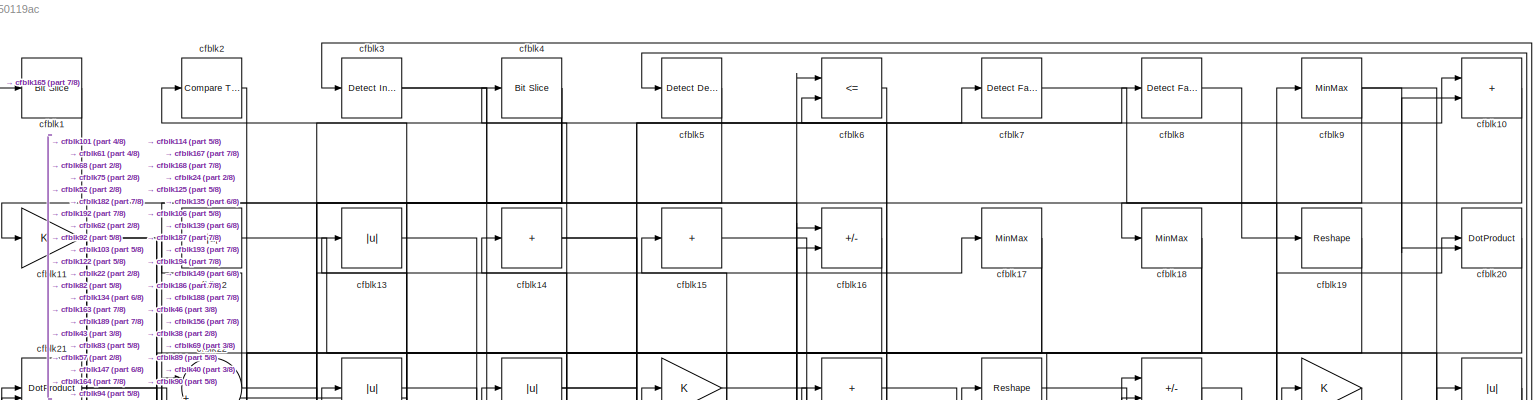
[diagram: root canvas - part 1/8, full width, top band]
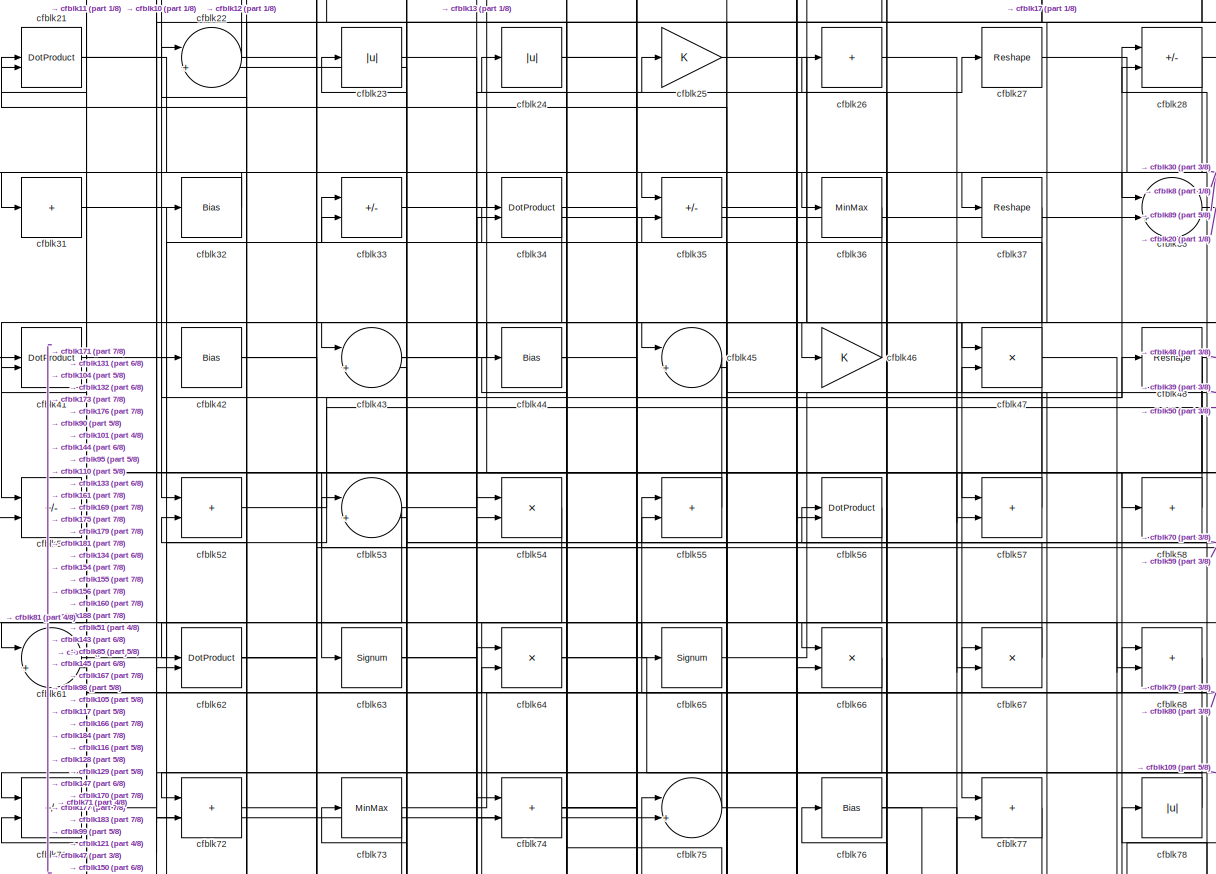
[diagram: root canvas - part 2/8, full width, top band]
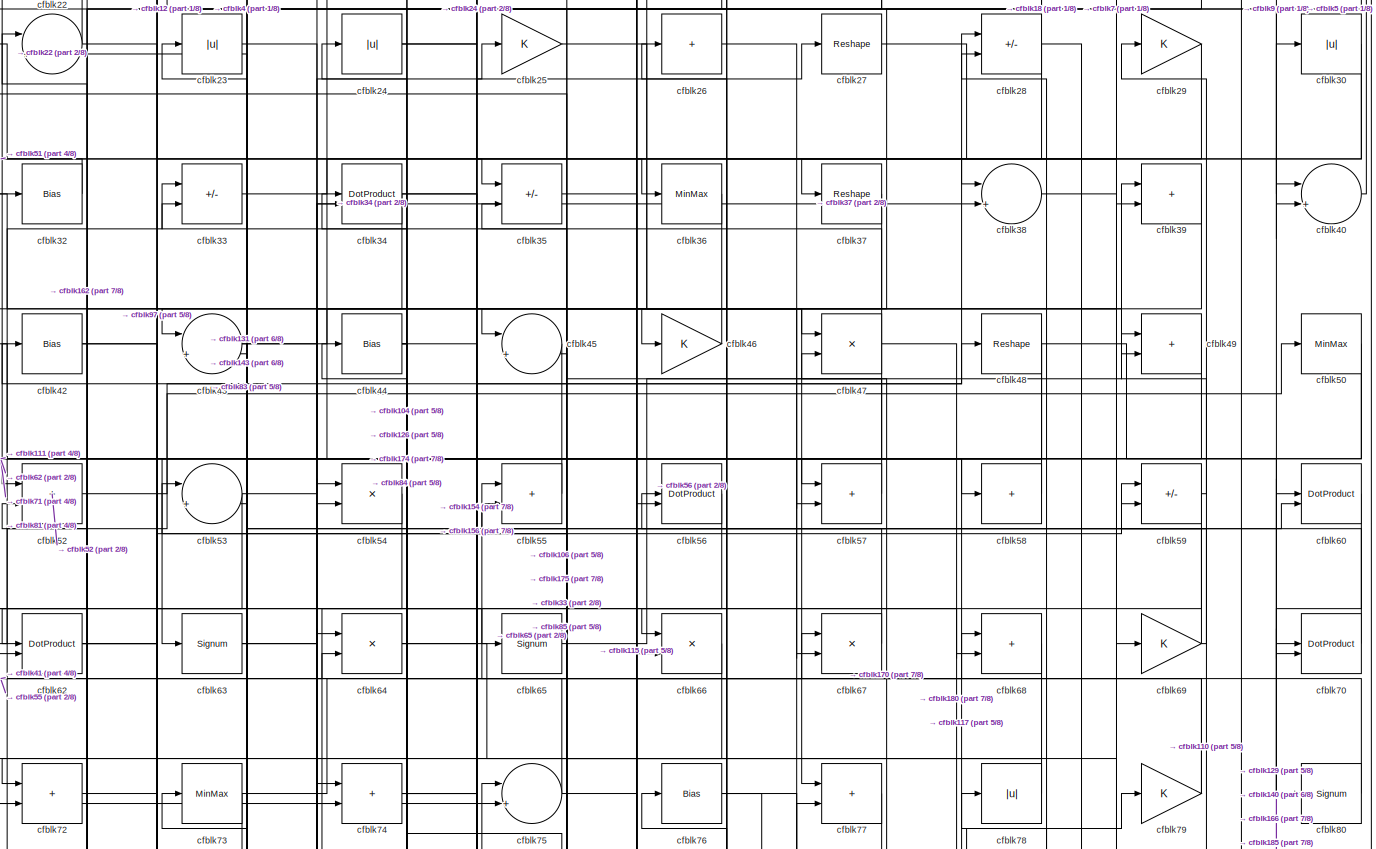
[diagram: root canvas - part 3/8, full width, top band]
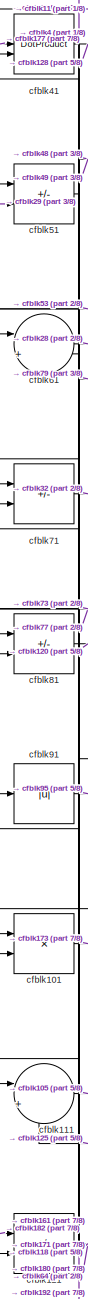
[diagram: root canvas - part 4/8, middle left region]
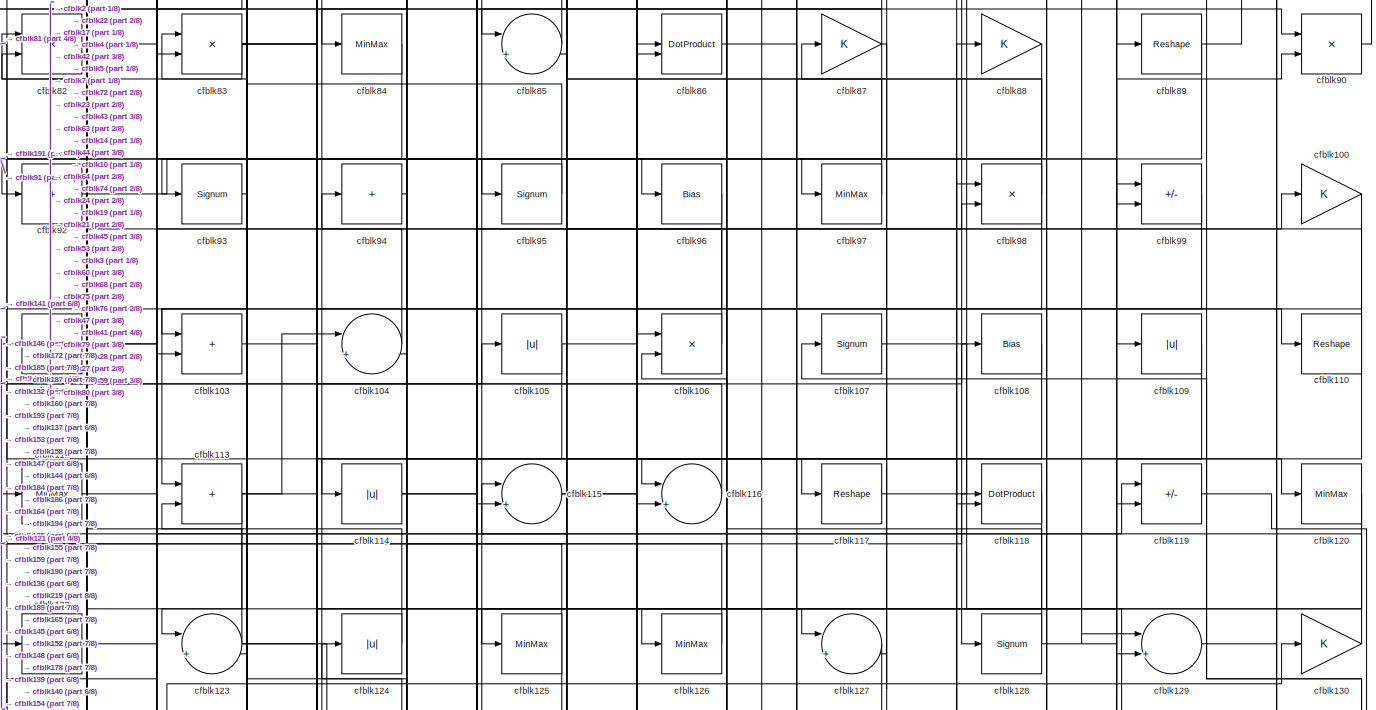
[diagram: root canvas - part 5/8, full width, middle band]
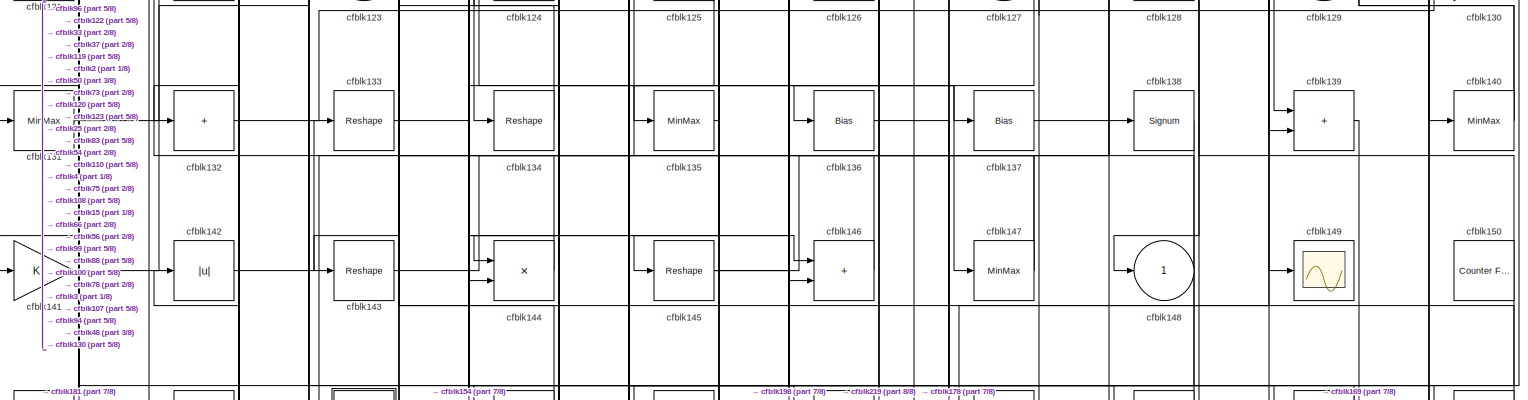
[diagram: root canvas - part 6/8, full width, middle band]
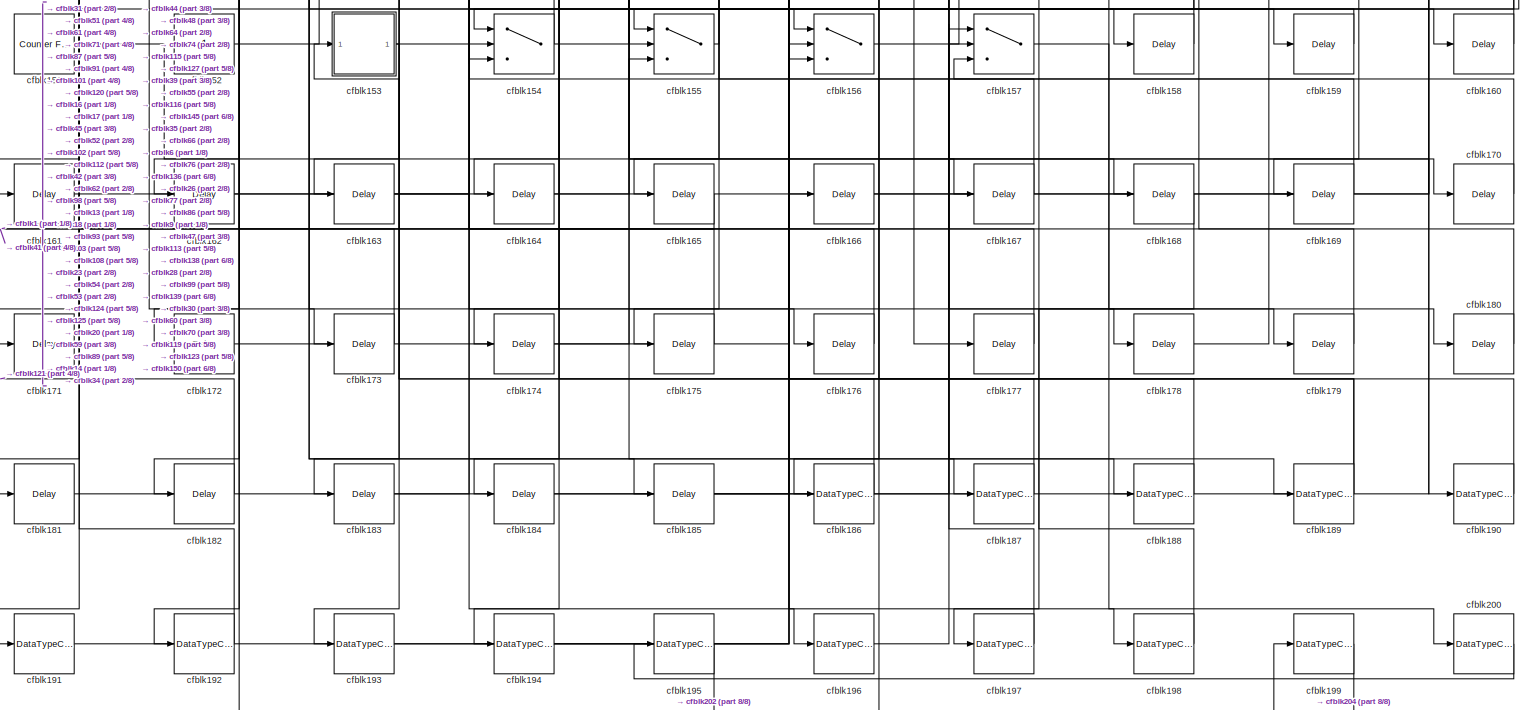
[diagram: root canvas - part 7/8, full width, bottom band]
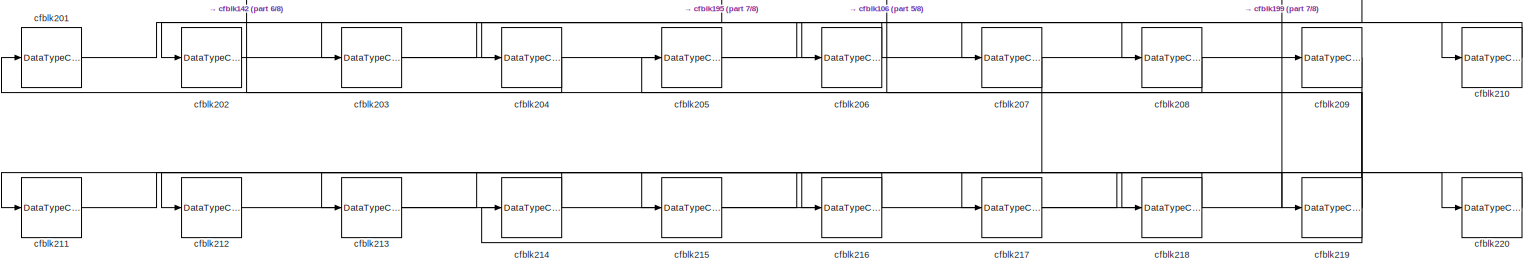
[diagram: root canvas - part 8/8, full width, bottom band]
MODEL slx_9e77850119ac
KIND model
CONFIG AbsTol = auto
CONFIG EnableMultiTasking = off
CONFIG FixedStep = auto
CONFIG MaxStep = auto
CONFIG MinStep = auto
CONFIG RelTol = 1e-3
CONFIG SampleTimeConstraint = Unconstrained
CONFIG SolverName = VariableStepAuto
CONFIG StartTime = 0.0
CONFIG StopTime = 10.0
BLOCK [Reference] cfblk1  REF=hdlsllib/Logic and Bit
Operations/Bit Slice
  SourceBlock = hdlsllib/Logic and Bit\nOperations/Bit Slice
  SourceType = Bit Slice
BLOCK [Sum] cfblk10
  IconShape = rectangular
BLOCK [Gain] cfblk100
BLOCK [Product] cfblk101
  Inputs = */
  RndMeth = Zero
  SaturateOnIntegerOverflow = on
BLOCK [Reshape] cfblk102
BLOCK [Sum] cfblk103
  IconShape = rectangular
BLOCK [Sum] cfblk104
  Inputs = |++
BLOCK [Abs] cfblk105
  SaturateOnIntegerOverflow = off
BLOCK [Product] cfblk106
  Inputs = */
  RndMeth = Zero
  SaturateOnIntegerOverflow = on
BLOCK [Signum] cfblk107
BLOCK [Bias] cfblk108
  Bias = 0.0
  SaturateOnIntegerOverflow = off
BLOCK [Abs] cfblk109
  SaturateOnIntegerOverflow = off
BLOCK [Gain] cfblk11
BLOCK [Reshape] cfblk110
BLOCK [Sum] cfblk111
  Inputs = |++
BLOCK [MinMax] cfblk112
BLOCK [Sum] cfblk113
  IconShape = rectangular
BLOCK [Abs] cfblk114
  SaturateOnIntegerOverflow = off
BLOCK [Sum] cfblk115
  Inputs = |++
BLOCK [Sum] cfblk116
  Inputs = |++
BLOCK [Reshape] cfblk117
BLOCK [DotProduct] cfblk118
  OutDataTypeStr = Inherit: Inherit via internal rule
BLOCK [Sum] cfblk119
  IconShape = rectangular
  Inputs = +-
BLOCK [Abs] cfblk12
  SaturateOnIntegerOverflow = off
BLOCK [MinMax] cfblk120
BLOCK [Sum] cfblk121
  IconShape = rectangular
  Inputs = +-
BLOCK [Sum] cfblk122
  IconShape = rectangular
  Inputs = +
BLOCK [Sum] cfblk123
  Inputs = |++
BLOCK [Abs] cfblk124
  SaturateOnIntegerOverflow = off
BLOCK [MinMax] cfblk125
BLOCK [MinMax] cfblk126
BLOCK [Sum] cfblk127
  Inputs = |++
BLOCK [Signum] cfblk128
BLOCK [Sum] cfblk129
  Inputs = |++
BLOCK [Abs] cfblk13
  SaturateOnIntegerOverflow = off
BLOCK [Gain] cfblk130
BLOCK [MinMax] cfblk131
BLOCK [Sum] cfblk132
  IconShape = rectangular
  Inputs = +
BLOCK [Reshape] cfblk133
BLOCK [Reshape] cfblk134
BLOCK [MinMax] cfblk135
BLOCK [Bias] cfblk136
  Bias = 0.0
  SaturateOnIntegerOverflow = off
BLOCK [Bias] cfblk137
  Bias = 0.0
  SaturateOnIntegerOverflow = off
BLOCK [Signum] cfblk138
BLOCK [Sum] cfblk139
  IconShape = rectangular
BLOCK [Sum] cfblk14
  IconShape = rectangular
  Inputs = +
BLOCK [MinMax] cfblk140
BLOCK [Gain] cfblk141
BLOCK [Abs] cfblk142
  SaturateOnIntegerOverflow = off
BLOCK [Reshape] cfblk143
BLOCK [Product] cfblk144
  Inputs = */
  RndMeth = Zero
  SaturateOnIntegerOverflow = on
BLOCK [Reshape] cfblk145
BLOCK [Sum] cfblk146
  IconShape = rectangular
BLOCK [MinMax] cfblk147
BLOCK [Outport] cfblk148
  VectorParamsAs1DForOutWhenUnconnected = off
BLOCK [Scope] cfblk149
  Floating = off
  NumInputPorts = 1
  ScopeSpecificationString = Simulink.scopes.TimeScopeBlockCfg('CurrentConfiguration', extmgr.ConfigurationSet(extmgr.Configuration('Core','General UI',true),extmgr.Configuration('Core','Source UI',true),extmgr.Configuration('Sources','WiredSimulink',true,'DataLoggingVariableName','ScopeData2','DataLoggingSaveFormat','Array','DataLoggingLimitDataPoints',true,'DataLoggingDecimation','1'),extmgr.Configuration('Visuals','Time Do...<+868ch>
BLOCK [Sum] cfblk15
  IconShape = rectangular
  Inputs = +
BLOCK [Reference] cfblk150  REF=hdlsllib/Sources/Counter
Free-Running
  SourceBlock = hdlsllib/Sources/Counter\nFree-Running
  SourceType = Counter Free-Running
BLOCK [Reference] cfblk151  REF=hdlsllib/Sources/Counter
Free-Running
  SourceBlock = hdlsllib/Sources/Counter\nFree-Running
  SourceType = Counter Free-Running
BLOCK [Constant] cfblk152
  SampleTime = -1
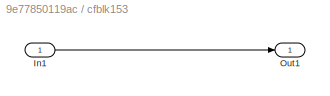
BLOCK [SubSystem] cfblk153
  LibrarySourceBlock = hdlsllib/Ports &\nSubsystems/Subsystem
BLOCK [Inport] cfblk153/In1
BLOCK [Outport] cfblk153/Out1
BLOCK [Switch] cfblk154
  InputSameDT = off
  SaturateOnIntegerOverflow = off
BLOCK [Switch] cfblk155
  InputSameDT = off
  SaturateOnIntegerOverflow = off
BLOCK [Switch] cfblk156
  InputSameDT = off
  SaturateOnIntegerOverflow = off
BLOCK [Switch] cfblk157
  InputSameDT = off
  SaturateOnIntegerOverflow = off
BLOCK [Delay] cfblk158
  InputPortMap = u0
  SampleTime = 1
BLOCK [Delay] cfblk159
  InputPortMap = u0
  SampleTime = 1
BLOCK [Sum] cfblk16
  IconShape = rectangular
  Inputs = +-
BLOCK [Delay] cfblk160
  InputPortMap = u0
  SampleTime = 1
BLOCK [Delay] cfblk161
  InputPortMap = u0
  SampleTime = 1
BLOCK [Delay] cfblk162
  InputPortMap = u0
  SampleTime = 1
BLOCK [Delay] cfblk163
  InputPortMap = u0
  SampleTime = 1
BLOCK [Delay] cfblk164
  InputPortMap = u0
  SampleTime = 1
BLOCK [Delay] cfblk165
  InputPortMap = u0
  SampleTime = 1
BLOCK [Delay] cfblk166
  InputPortMap = u0
  SampleTime = 1
BLOCK [Delay] cfblk167
  InputPortMap = u0
  SampleTime = 1
BLOCK [Delay] cfblk168
  InputPortMap = u0
  SampleTime = 1
BLOCK [Delay] cfblk169
  InputPortMap = u0
  SampleTime = 1
BLOCK [MinMax] cfblk17
BLOCK [Delay] cfblk170
  InputPortMap = u0
  SampleTime = 1
BLOCK [Delay] cfblk171
  InputPortMap = u0
  SampleTime = 1
BLOCK [Delay] cfblk172
  InputPortMap = u0
  SampleTime = 1
BLOCK [Delay] cfblk173
  InputPortMap = u0
  SampleTime = 1
BLOCK [Delay] cfblk174
  InputPortMap = u0
  SampleTime = 1
BLOCK [Delay] cfblk175
  InputPortMap = u0
  SampleTime = 1
BLOCK [Delay] cfblk176
  InputPortMap = u0
  SampleTime = 1
BLOCK [Delay] cfblk177
  InputPortMap = u0
  SampleTime = 1
BLOCK [Delay] cfblk178
  InputPortMap = u0
  SampleTime = 1
BLOCK [Delay] cfblk179
  InputPortMap = u0
  SampleTime = 1
BLOCK [MinMax] cfblk18
BLOCK [Delay] cfblk180
  InputPortMap = u0
  SampleTime = 1
BLOCK [Delay] cfblk181
  InputPortMap = u0
  SampleTime = 1
BLOCK [Delay] cfblk182
  InputPortMap = u0
  SampleTime = 1
BLOCK [Delay] cfblk183
  InputPortMap = u0
  SampleTime = 1
BLOCK [Delay] cfblk184
  InputPortMap = u0
  SampleTime = 1
BLOCK [Delay] cfblk185
  InputPortMap = u0
  SampleTime = 1
BLOCK [DataTypeConversion] cfblk186
  OutDataTypeStr = uint8
  RndMeth = Floor
  SaturateOnIntegerOverflow = off
BLOCK [DataTypeConversion] cfblk187
  OutDataTypeStr = uint8
  RndMeth = Floor
  SaturateOnIntegerOverflow = off
BLOCK [DataTypeConversion] cfblk188
  OutDataTypeStr = uint8
  RndMeth = Floor
  SaturateOnIntegerOverflow = off
BLOCK [DataTypeConversion] cfblk189
  RndMeth = Floor
  SaturateOnIntegerOverflow = off
BLOCK [Reshape] cfblk19
BLOCK [DataTypeConversion] cfblk190
  OutDataTypeStr = uint8
  RndMeth = Floor
  SaturateOnIntegerOverflow = off
BLOCK [DataTypeConversion] cfblk191
  OutDataTypeStr = uint8
  RndMeth = Floor
  SaturateOnIntegerOverflow = off
BLOCK [DataTypeConversion] cfblk192
  OutDataTypeStr = uint8
  RndMeth = Floor
  SaturateOnIntegerOverflow = off
BLOCK [DataTypeConversion] cfblk193
  OutDataTypeStr = uint8
  RndMeth = Floor
  SaturateOnIntegerOverflow = off
BLOCK [DataTypeConversion] cfblk194
  OutDataTypeStr = uint8
  RndMeth = Floor
  SaturateOnIntegerOverflow = off
BLOCK [DataTypeConversion] cfblk195
  RndMeth = Floor
  SaturateOnIntegerOverflow = off
BLOCK [DataTypeConversion] cfblk196
  OutDataTypeStr = uint8
  RndMeth = Floor
  SaturateOnIntegerOverflow = off
BLOCK [DataTypeConversion] cfblk197
  OutDataTypeStr = uint8
  RndMeth = Floor
  SaturateOnIntegerOverflow = off
BLOCK [DataTypeConversion] cfblk198
  OutDataTypeStr = uint8
  RndMeth = Floor
  SaturateOnIntegerOverflow = off
BLOCK [DataTypeConversion] cfblk199
  RndMeth = Floor
  SaturateOnIntegerOverflow = off
BLOCK [Reference] cfblk2  REF=hdlsllib/Logic and Bit
Operations/Compare
To Zero
  SourceBlock = hdlsllib/Logic and Bit\nOperations/Compare\nTo Zero
  SourceType = Compare To Zero
BLOCK [DotProduct] cfblk20
  OutDataTypeStr = Inherit: Inherit via internal rule
BLOCK [DataTypeConversion] cfblk200
  OutDataTypeStr = uint8
  RndMeth = Floor
  SaturateOnIntegerOverflow = off
BLOCK [DataTypeConversion] cfblk201
  RndMeth = Floor
  SaturateOnIntegerOverflow = off
BLOCK [DataTypeConversion] cfblk202
  OutDataTypeStr = uint8
  RndMeth = Floor
  SaturateOnIntegerOverflow = off
BLOCK [DataTypeConversion] cfblk203
  RndMeth = Floor
  SaturateOnIntegerOverflow = off
BLOCK [DataTypeConversion] cfblk204
  OutDataTypeStr = uint8
  RndMeth = Floor
  SaturateOnIntegerOverflow = off
BLOCK [DataTypeConversion] cfblk205
  RndMeth = Floor
  SaturateOnIntegerOverflow = off
BLOCK [DataTypeConversion] cfblk206
  OutDataTypeStr = uint8
  RndMeth = Floor
  SaturateOnIntegerOverflow = off
BLOCK [DataTypeConversion] cfblk207
  RndMeth = Floor
  SaturateOnIntegerOverflow = off
BLOCK [DataTypeConversion] cfblk208
  OutDataTypeStr = uint8
  RndMeth = Floor
  SaturateOnIntegerOverflow = off
BLOCK [DataTypeConversion] cfblk209
  RndMeth = Floor
  SaturateOnIntegerOverflow = off
BLOCK [DotProduct] cfblk21
  OutDataTypeStr = Inherit: Inherit via internal rule
BLOCK [DataTypeConversion] cfblk210
  OutDataTypeStr = uint8
  RndMeth = Floor
  SaturateOnIntegerOverflow = off
BLOCK [DataTypeConversion] cfblk211
  RndMeth = Floor
  SaturateOnIntegerOverflow = off
BLOCK [DataTypeConversion] cfblk212
  OutDataTypeStr = uint8
  RndMeth = Floor
  SaturateOnIntegerOverflow = off
BLOCK [DataTypeConversion] cfblk213
  RndMeth = Floor
  SaturateOnIntegerOverflow = off
BLOCK [DataTypeConversion] cfblk214
  OutDataTypeStr = uint8
  RndMeth = Floor
  SaturateOnIntegerOverflow = off
BLOCK [DataTypeConversion] cfblk215
  RndMeth = Floor
  SaturateOnIntegerOverflow = off
BLOCK [DataTypeConversion] cfblk216
  OutDataTypeStr = uint8
  RndMeth = Floor
  SaturateOnIntegerOverflow = off
BLOCK [DataTypeConversion] cfblk217
  RndMeth = Floor
  SaturateOnIntegerOverflow = off
BLOCK [DataTypeConversion] cfblk218
  OutDataTypeStr = uint8
  RndMeth = Floor
  SaturateOnIntegerOverflow = off
BLOCK [DataTypeConversion] cfblk219
  RndMeth = Floor
  SaturateOnIntegerOverflow = off
BLOCK [Sum] cfblk22
  Inputs = |++
BLOCK [DataTypeConversion] cfblk220
  OutDataTypeStr = uint8
  RndMeth = Floor
  SaturateOnIntegerOverflow = off
BLOCK [Abs] cfblk23
  SaturateOnIntegerOverflow = off
BLOCK [Abs] cfblk24
  SaturateOnIntegerOverflow = off
BLOCK [Gain] cfblk25
BLOCK [Sum] cfblk26
  IconShape = rectangular
  Inputs = +
BLOCK [Reshape] cfblk27
BLOCK [Sum] cfblk28
  IconShape = rectangular
  Inputs = +-
BLOCK [Gain] cfblk29
BLOCK [Reference] cfblk3  REF=simulink/Logic and Bit
Operations/Detect
Increase
  LibrarySourceBlock = hdlsllib/Logic and Bit\nOperations/Detect\nIncrease
  SourceBlock = simulink/Logic and Bit\nOperations/Detect\nIncrease
  SourceType = Detect Increase
BLOCK [Abs] cfblk30
  SaturateOnIntegerOverflow = off
BLOCK [Sum] cfblk31
  IconShape = rectangular
  Inputs = +
BLOCK [Bias] cfblk32
  Bias = 0.0
  SaturateOnIntegerOverflow = off
BLOCK [Sum] cfblk33
  IconShape = rectangular
  Inputs = +-
BLOCK [DotProduct] cfblk34
  OutDataTypeStr = Inherit: Inherit via internal rule
BLOCK [Sum] cfblk35
  IconShape = rectangular
  Inputs = +-
BLOCK [MinMax] cfblk36
BLOCK [Reshape] cfblk37
BLOCK [Sum] cfblk38
  Inputs = |++
BLOCK [Sum] cfblk39
  IconShape = rectangular
BLOCK [Reference] cfblk4  REF=hdlsllib/Logic and Bit
Operations/Bit Slice
  SourceBlock = hdlsllib/Logic and Bit\nOperations/Bit Slice
  SourceType = Bit Slice
BLOCK [Sum] cfblk40
  Inputs = |++
BLOCK [DotProduct] cfblk41
  OutDataTypeStr = Inherit: Inherit via internal rule
BLOCK [Bias] cfblk42
  Bias = 0.0
  SaturateOnIntegerOverflow = off
BLOCK [Sum] cfblk43
  Inputs = |++
BLOCK [Bias] cfblk44
  Bias = 0.0
  SaturateOnIntegerOverflow = off
BLOCK [Sum] cfblk45
  Inputs = |++
BLOCK [Gain] cfblk46
BLOCK [Product] cfblk47
  Inputs = */
  RndMeth = Zero
  SaturateOnIntegerOverflow = on
BLOCK [Reshape] cfblk48
BLOCK [Sum] cfblk49
  IconShape = rectangular
BLOCK [Reference] cfblk5  REF=simulink/Logic and Bit
Operations/Detect
Decrease
  LibrarySourceBlock = hdlsllib/Logic and Bit\nOperations/Detect\nDecrease
  SourceBlock = simulink/Logic and Bit\nOperations/Detect\nDecrease
  SourceType = Detect Decrease
BLOCK [MinMax] cfblk50
BLOCK [Sum] cfblk51
  IconShape = rectangular
  Inputs = +-
BLOCK [Sum] cfblk52
  IconShape = rectangular
BLOCK [Sum] cfblk53
  Inputs = |++
BLOCK [Product] cfblk54
  Inputs = */
  RndMeth = Zero
  SaturateOnIntegerOverflow = on
BLOCK [Sum] cfblk55
  IconShape = rectangular
BLOCK [DotProduct] cfblk56
  OutDataTypeStr = Inherit: Inherit via internal rule
BLOCK [Sum] cfblk57
  IconShape = rectangular
BLOCK [Sum] cfblk58
  IconShape = rectangular
  Inputs = +
BLOCK [Sum] cfblk59
  IconShape = rectangular
  Inputs = +-
BLOCK [RelationalOperator] cfblk6
  InputSameDT = off
  Operator = <=
  OutDataTypeStr = boolean
BLOCK [DotProduct] cfblk60
  OutDataTypeStr = Inherit: Inherit via internal rule
BLOCK [Sum] cfblk61
  Inputs = |++
BLOCK [DotProduct] cfblk62
  OutDataTypeStr = Inherit: Inherit via internal rule
BLOCK [Signum] cfblk63
BLOCK [Product] cfblk64
  Inputs = */
  RndMeth = Zero
  SaturateOnIntegerOverflow = on
BLOCK [Signum] cfblk65
BLOCK [Product] cfblk66
  Inputs = */
  RndMeth = Zero
  SaturateOnIntegerOverflow = on
BLOCK [Product] cfblk67
  Inputs = */
  RndMeth = Zero
  SaturateOnIntegerOverflow = on
BLOCK [Sum] cfblk68
  IconShape = rectangular
BLOCK [Gain] cfblk69
BLOCK [Reference] cfblk7  REF=hdlsllib/Logic and Bit
Operations/Detect Fall
Negative
  SourceBlock = hdlsllib/Logic and Bit\nOperations/Detect Fall\nNegative
  SourceType = Detect Fall Negative
BLOCK [DotProduct] cfblk70
  OutDataTypeStr = Inherit: Inherit via internal rule
BLOCK [Sum] cfblk71
  IconShape = rectangular
  Inputs = +-
BLOCK [Sum] cfblk72
  IconShape = rectangular
BLOCK [MinMax] cfblk73
BLOCK [Sum] cfblk74
  IconShape = rectangular
BLOCK [Sum] cfblk75
  Inputs = |++
BLOCK [Bias] cfblk76
  Bias = 0.0
  SaturateOnIntegerOverflow = off
BLOCK [Sum] cfblk77
  IconShape = rectangular
BLOCK [Abs] cfblk78
  SaturateOnIntegerOverflow = off
BLOCK [Gain] cfblk79
BLOCK [Reference] cfblk8  REF=hdlsllib/Logic and Bit
Operations/Detect Fall
Negative
  SourceBlock = hdlsllib/Logic and Bit\nOperations/Detect Fall\nNegative
  SourceType = Detect Fall Negative
BLOCK [Signum] cfblk80
BLOCK [Sum] cfblk81
  IconShape = rectangular
  Inputs = +-
BLOCK [Product] cfblk82
  Inputs = */
  RndMeth = Zero
  SaturateOnIntegerOverflow = on
BLOCK [Product] cfblk83
  Inputs = */
  RndMeth = Zero
  SaturateOnIntegerOverflow = on
BLOCK [MinMax] cfblk84
BLOCK [Sum] cfblk85
  Inputs = |++
BLOCK [DotProduct] cfblk86
  OutDataTypeStr = Inherit: Inherit via internal rule
BLOCK [Gain] cfblk87
BLOCK [Gain] cfblk88
BLOCK [Reshape] cfblk89
BLOCK [MinMax] cfblk9
BLOCK [Product] cfblk90
  Inputs = */
  RndMeth = Zero
  SaturateOnIntegerOverflow = on
BLOCK [Abs] cfblk91
  SaturateOnIntegerOverflow = off
BLOCK [Sum] cfblk92
  IconShape = rectangular
  Inputs = +
BLOCK [Signum] cfblk93
BLOCK [Sum] cfblk94
  IconShape = rectangular
  Inputs = +
BLOCK [Signum] cfblk95
BLOCK [Bias] cfblk96
  Bias = 0.0
  SaturateOnIntegerOverflow = off
BLOCK [MinMax] cfblk97
BLOCK [Product] cfblk98
  Inputs = */
  RndMeth = Zero
  SaturateOnIntegerOverflow = on
BLOCK [Sum] cfblk99
  IconShape = rectangular
  Inputs = +-
LINE cfblk100:1 -> cfblk148:1
LINE cfblk101:1 -> cfblk173:1
NET cfblk102:1 -> cfblk187:1, cfblk98:2
LINE cfblk103:1 -> cfblk158:1
LINE cfblk104:1 -> cfblk22:1
NET cfblk105:1 -> cfblk114:1, cfblk68:1
LINE cfblk106:1 -> cfblk45:2
LINE cfblk107:1 -> cfblk139:1
LINE cfblk108:1 -> cfblk135:1
LINE cfblk109:1 -> cfblk119:2
LINE cfblk10:1 -> cfblk52:1
NET cfblk110:1 -> cfblk144:1, cfblk59:1
LINE cfblk111:1 -> cfblk105:1
LINE cfblk112:1 -> cfblk185:1
NET cfblk113:1 -> cfblk104:1, cfblk118:2, cfblk123:1
NET cfblk114:1 -> cfblk100:1, cfblk10:1
NET cfblk115:1 -> cfblk159:1, cfblk60:2
LINE cfblk116:1 -> cfblk102:1
LINE cfblk117:1 -> cfblk79:1
LINE cfblk118:1 -> cfblk126:1
LINE cfblk119:1 -> cfblk154:1
NET cfblk11:1 -> cfblk61:1, cfblk68:2, cfblk75:2
NET cfblk120:1 -> cfblk144:2, cfblk172:1
NET cfblk121:1 -> cfblk118:1, cfblk64:2
LINE cfblk122:1 -> cfblk17:1
NET cfblk123:1 -> cfblk146:2, cfblk147:1, cfblk82:1
LINE cfblk124:1 -> cfblk83:1
NET cfblk125:1 -> cfblk111:2, cfblk194:1
LINE cfblk126:1 -> cfblk44:1
LINE cfblk127:1 -> cfblk165:1
NET cfblk128:1 -> cfblk76:1, cfblk90:2
LINE cfblk129:1 -> cfblk80:1
LINE cfblk12:1 -> cfblk40:1
LINE cfblk130:1 -> cfblk112:1
LINE cfblk131:1 -> cfblk33:1
LINE cfblk132:1 -> cfblk130:1
LINE cfblk133:1 -> cfblk25:1
LINE cfblk134:1 -> cfblk2:1
LINE cfblk135:1 -> cfblk15:1
LINE cfblk136:1 -> cfblk178:1
LINE cfblk137:1 -> cfblk138:1
LINE cfblk138:1 -> cfblk181:1
LINE cfblk139:1 -> cfblk169:1
LINE cfblk13:1 -> cfblk57:2
NET cfblk140:1 -> cfblk107:1, cfblk94:1
LINE cfblk141:1 -> cfblk119:1
LINE cfblk142:1 -> cfblk133:1
LINE cfblk143:1 -> cfblk75:1
LINE cfblk144:1 -> cfblk73:1
NET cfblk145:1 -> cfblk198:1, cfblk88:1
LINE cfblk146:1 -> cfblk122:1
NET cfblk147:1 -> cfblk4:1, cfblk56:1
NET cfblk14:1 -> cfblk167:1, cfblk168:1
NET cfblk150:1 -> cfblk154:3, cfblk78:1
LINE cfblk151:1 -> cfblk190:1
LINE cfblk152:1 -> cfblk98:1
LINE cfblk153/In1:1 -> cfblk153/Out1:1
NET cfblk153:1 -> cfblk108:1, cfblk183:1
NET cfblk154:1 -> cfblk48:1, cfblk53:2
LINE cfblk155:1 -> cfblk115:1
LINE cfblk156:1 -> cfblk9:1
LINE cfblk157:1 -> cfblk200:1
LINE cfblk158:1 -> cfblk113:2
LINE cfblk159:1 -> cfblk155:1
LINE cfblk15:1 -> cfblk149:1
LINE cfblk160:1 -> cfblk123:2
LINE cfblk161:1 -> cfblk34:2
LINE cfblk162:1 -> cfblk70:1
LINE cfblk163:1 -> cfblk196:1
LINE cfblk164:1 -> cfblk115:2
LINE cfblk165:1 -> cfblk1:1
LINE cfblk166:1 -> cfblk60:1
LINE cfblk167:1 -> cfblk55:2
LINE cfblk168:1 -> cfblk197:1
LINE cfblk169:1 -> cfblk54:1
LINE cfblk16:1 -> cfblk192:1
LINE cfblk170:1 -> cfblk47:2
LINE cfblk171:1 -> cfblk71:2
LINE cfblk172:1 -> cfblk116:2
LINE cfblk173:1 -> cfblk52:2
LINE cfblk174:1 -> cfblk155:3
LINE cfblk175:1 -> cfblk64:1
LINE cfblk176:1 -> cfblk154:2
LINE cfblk177:1 -> cfblk41:1
LINE cfblk178:1 -> cfblk99:1
LINE cfblk179:1 -> cfblk28:2
NET cfblk17:1 -> cfblk182:1, cfblk62:2
LINE cfblk180:1 -> cfblk61:2
LINE cfblk181:1 -> cfblk74:1
LINE cfblk182:1 -> cfblk121:1
LINE cfblk183:1 -> cfblk77:2
LINE cfblk184:1 -> cfblk66:2
LINE cfblk185:1 -> cfblk30:1
LINE cfblk186:1 -> cfblk124:1
LINE cfblk187:1 -> cfblk6:1
LINE cfblk188:1 -> cfblk6:2
NET cfblk189:1 -> cfblk13:1, cfblk153:1
NET cfblk18:1 -> cfblk163:1, cfblk46:1
LINE cfblk190:1 -> cfblk86:1
LINE cfblk191:1 -> cfblk86:2
LINE cfblk192:1 -> cfblk91:1
LINE cfblk193:1 -> cfblk16:1
LINE cfblk194:1 -> cfblk16:2
LINE cfblk195:1 -> cfblk202:1
LINE cfblk196:1 -> cfblk157:1
LINE cfblk197:1 -> cfblk157:2
LINE cfblk198:1 -> cfblk157:3
LINE cfblk199:1 -> cfblk204:1
LINE cfblk19:1 -> cfblk125:1
LINE cfblk1:1 -> cfblk11:1
LINE cfblk200:1 -> cfblk195:1
LINE cfblk201:1 -> cfblk206:1
LINE cfblk202:1 -> cfblk199:1
LINE cfblk203:1 -> cfblk208:1
LINE cfblk204:1 -> cfblk201:1
LINE cfblk205:1 -> cfblk210:1
LINE cfblk206:1 -> cfblk203:1
LINE cfblk207:1 -> cfblk212:1
LINE cfblk208:1 -> cfblk205:1
LINE cfblk209:1 -> cfblk214:1
LINE cfblk20:1 -> cfblk164:1
LINE cfblk210:1 -> cfblk207:1
LINE cfblk211:1 -> cfblk216:1
LINE cfblk212:1 -> cfblk209:1
LINE cfblk213:1 -> cfblk218:1
LINE cfblk214:1 -> cfblk211:1
LINE cfblk215:1 -> cfblk220:1
LINE cfblk216:1 -> cfblk213:1
LINE cfblk217:1 -> cfblk219:1
LINE cfblk218:1 -> cfblk215:1
NET cfblk219:1 -> cfblk106:2, cfblk142:1
NET cfblk21:1 -> cfblk38:1, cfblk58:1
LINE cfblk220:1 -> cfblk217:1
NET cfblk22:1 -> cfblk12:1, cfblk36:1
LINE cfblk23:1 -> cfblk179:1
NET cfblk24:1 -> cfblk39:2, cfblk8:1
LINE cfblk25:1 -> cfblk77:1
LINE cfblk26:1 -> cfblk170:1
LINE cfblk27:1 -> cfblk89:1
NET cfblk28:1 -> cfblk116:1, cfblk129:1
LINE cfblk29:1 -> cfblk51:2
LINE cfblk2:1 -> cfblk92:1
NET cfblk30:1 -> cfblk37:1, cfblk56:2
NET cfblk31:1 -> cfblk171:1, cfblk67:2
LINE cfblk32:1 -> cfblk31:1
LINE cfblk33:1 -> cfblk35:1
NET cfblk34:1 -> cfblk156:3, cfblk188:1, cfblk51:1
LINE cfblk35:1 -> cfblk166:1
LINE cfblk36:1 -> cfblk74:2
LINE cfblk37:1 -> cfblk132:1
LINE cfblk38:1 -> cfblk20:1
LINE cfblk39:1 -> cfblk175:1
NET cfblk3:1 -> cfblk106:1, cfblk139:2
LINE cfblk40:1 -> cfblk5:1
LINE cfblk41:1 -> cfblk128:1
NET cfblk42:1 -> cfblk156:2, cfblk97:1
NET cfblk43:1 -> cfblk47:1, cfblk49:1
NET cfblk44:1 -> cfblk104:2, cfblk156:1, cfblk84:1
LINE cfblk45:1 -> cfblk162:1
LINE cfblk46:1 -> cfblk45:1
NET cfblk47:1 -> cfblk180:1, cfblk33:2, cfblk85:2
NET cfblk48:1 -> cfblk140:1, cfblk62:1, cfblk71:1, cfblk81:1
LINE cfblk49:1 -> cfblk111:1
NET cfblk4:1 -> cfblk101:1, cfblk43:1, cfblk83:2
NET cfblk50:1 -> cfblk131:1, cfblk143:1
LINE cfblk51:1 -> cfblk161:1
LINE cfblk52:1 -> cfblk50:1
NET cfblk53:1 -> cfblk38:2, cfblk81:2
LINE cfblk54:1 -> cfblk134:1
LINE cfblk55:1 -> cfblk63:1
LINE cfblk56:1 -> cfblk66:1
LINE cfblk57:1 -> cfblk35:2
LINE cfblk58:1 -> cfblk57:1
NET cfblk59:1 -> cfblk174:1, cfblk29:1
LINE cfblk5:1 -> cfblk103:2
LINE cfblk60:1 -> cfblk70:2
LINE cfblk61:1 -> cfblk28:1
NET cfblk62:1 -> cfblk176:1, cfblk59:2, cfblk65:1
NET cfblk63:1 -> cfblk110:1, cfblk54:2
NET cfblk64:1 -> cfblk109:1, cfblk155:2
LINE cfblk65:1 -> cfblk39:1
LINE cfblk66:1 -> cfblk145:1
LINE cfblk67:1 -> cfblk26:1
LINE cfblk68:1 -> cfblk72:2
NET cfblk69:1 -> cfblk42:1, cfblk49:2
LINE cfblk6:1 -> cfblk186:1
LINE cfblk70:1 -> cfblk22:2
LINE cfblk71:1 -> cfblk32:1
LINE cfblk72:1 -> cfblk90:1
NET cfblk73:1 -> cfblk101:2, cfblk67:1
NET cfblk74:1 -> cfblk129:2, cfblk160:1, cfblk27:1
NET cfblk75:1 -> cfblk117:1, cfblk21:1
NET cfblk76:1 -> cfblk177:1, cfblk99:2
LINE cfblk77:1 -> cfblk121:2
LINE cfblk78:1 -> cfblk72:1
NET cfblk79:1 -> cfblk41:2, cfblk55:1
LINE cfblk7:1 -> cfblk69:1
LINE cfblk80:1 -> cfblk34:1
LINE cfblk81:1 -> cfblk120:1
LINE cfblk82:1 -> cfblk7:1
NET cfblk83:1 -> cfblk127:1, cfblk137:1, cfblk146:1, cfblk43:2, cfblk82:2
LINE cfblk84:1 -> cfblk93:1
LINE cfblk85:1 -> cfblk24:1
LINE cfblk86:1 -> cfblk189:1
NET cfblk87:1 -> cfblk127:2, cfblk191:1, cfblk85:1
LINE cfblk88:1 -> cfblk103:1
NET cfblk89:1 -> cfblk10:2, cfblk184:1
LINE cfblk8:1 -> cfblk19:1
LINE cfblk90:1 -> cfblk3:1
LINE cfblk91:1 -> cfblk95:1
LINE cfblk92:1 -> cfblk96:1
LINE cfblk93:1 -> cfblk193:1
LINE cfblk94:1 -> cfblk14:1
LINE cfblk95:1 -> cfblk23:1
LINE cfblk96:1 -> cfblk141:1
LINE cfblk97:1 -> cfblk87:1
NET cfblk98:1 -> cfblk113:1, cfblk21:2, cfblk53:1
LINE cfblk99:1 -> cfblk136:1
NET cfblk9:1 -> cfblk18:1, cfblk20:2, cfblk40:2
note: NET lines group one-source signal fan-out (src -> all destinations, sorted); 1:1 wires keep LINE
